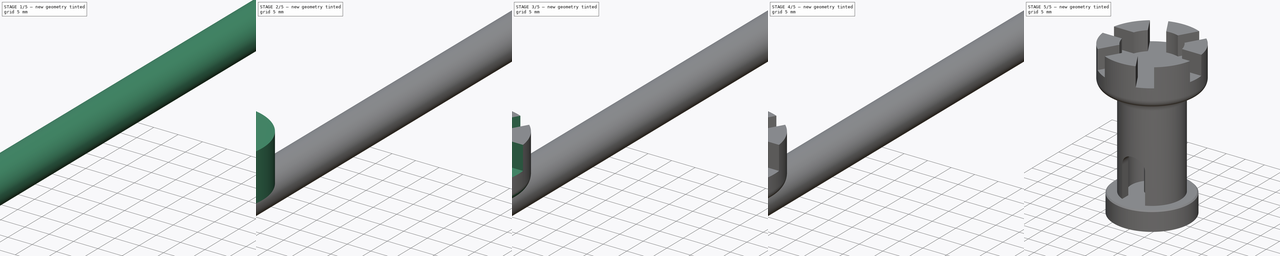
[diagram: build sequence overview — one tinted view per stage of 5, left to right]
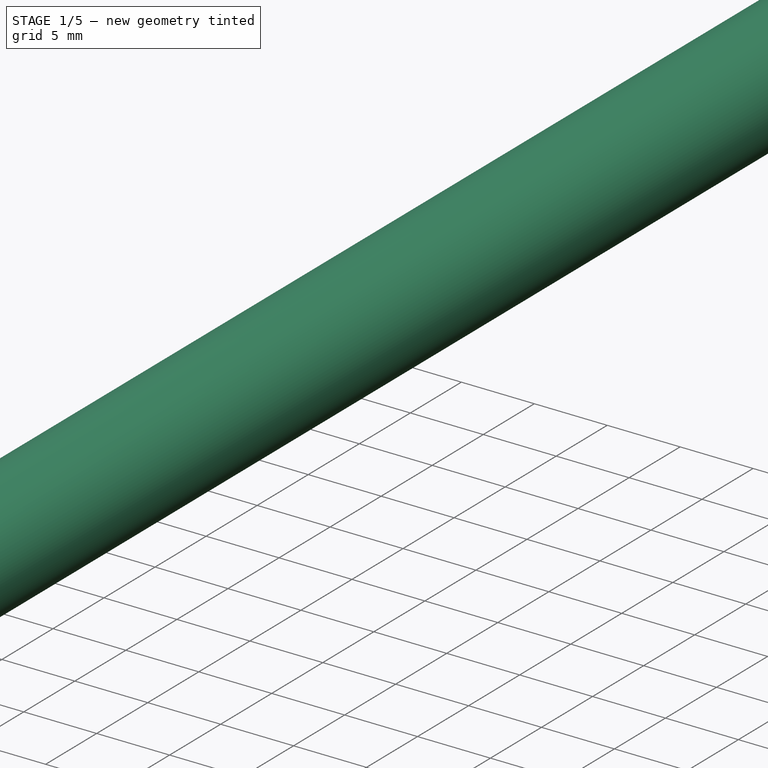
[diagram: stage 1 of 5 — iso view after this stage's code; geometry added in this stage tinted green]
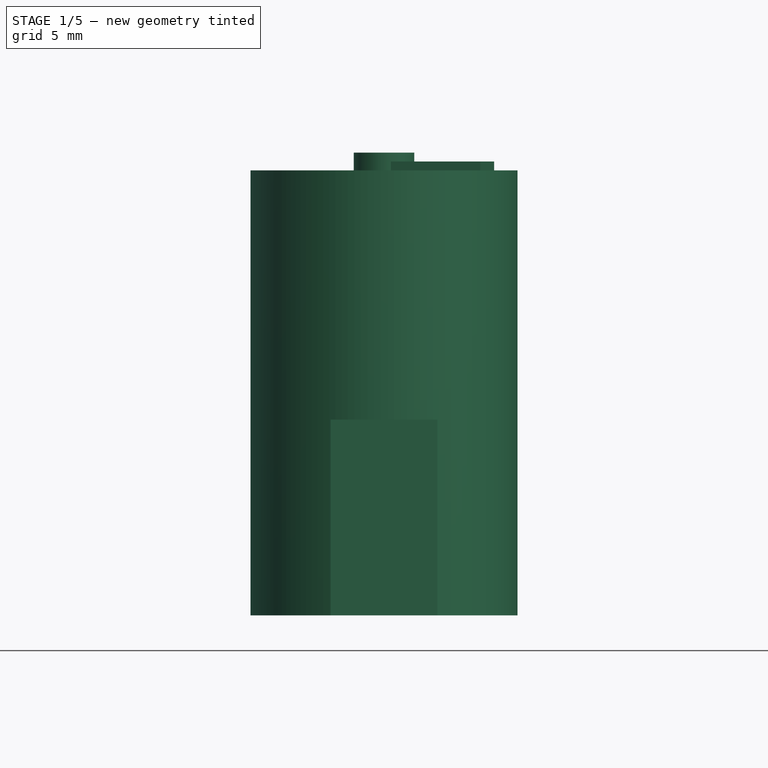
[diagram: stage 1 of 5 — front view after this stage's code; geometry added in this stage tinted green]
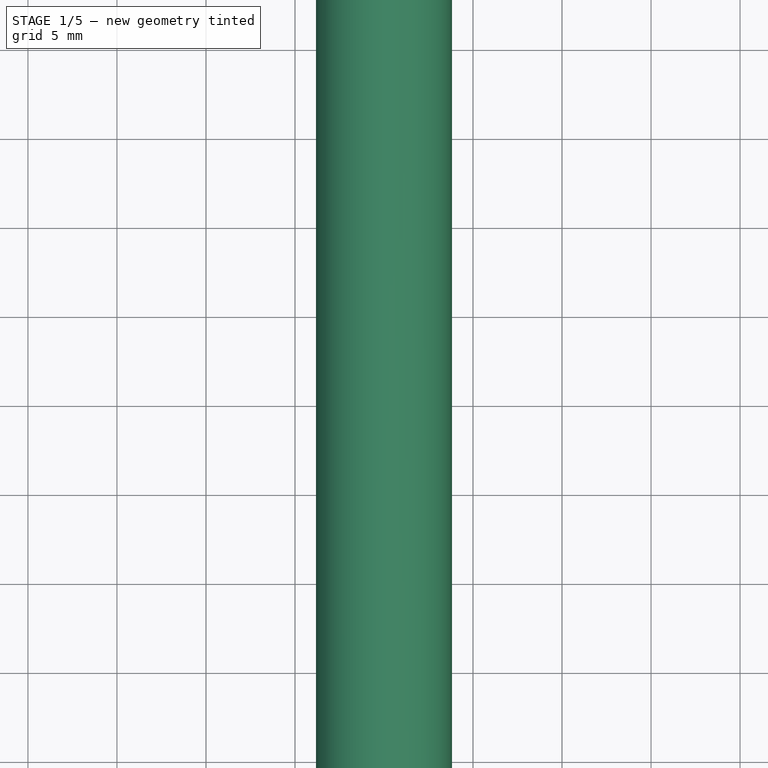
[diagram: stage 1 of 5 — top view after this stage's code; geometry added in this stage tinted green]
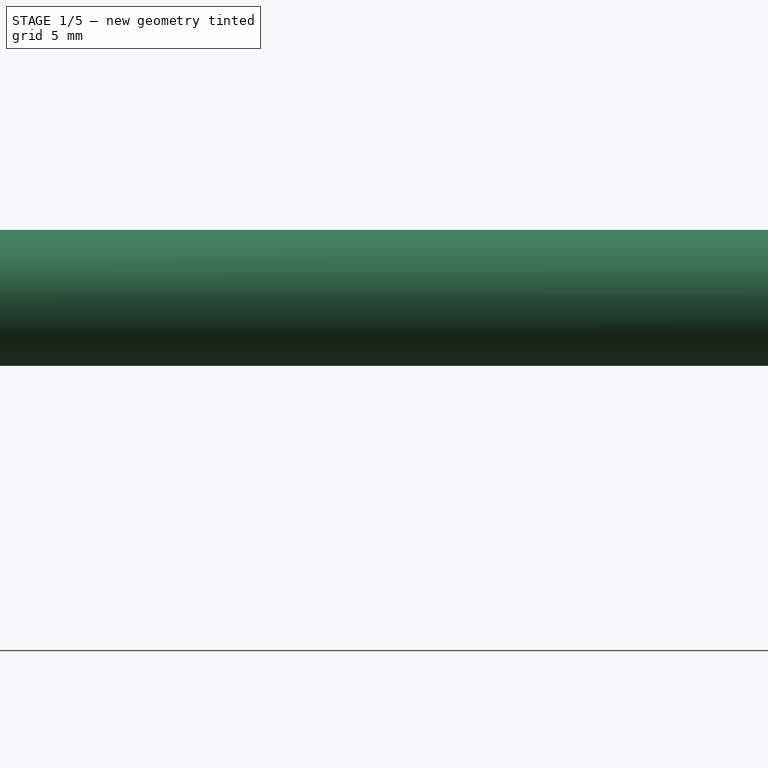
[diagram: stage 1 of 5 — right view after this stage's code; geometry added in this stage tinted green]
FCSTD DOCUMENT  (FreeCAD 0.16R6706 (Git))
Label: Torre663
License: All rights reserved
LicenseURL: http://en.wikipedia.org/wiki/All_rights_reserved
objects: PartDesign::Fillet×15, Part::Cylinder×6, Part::Cut×5, Part::MultiFuse×4, Part::Box×3, Part::Fillet×3, Part::FeaturePython×2, Part::Chamfer×1, PartDesign::Chamfer×1, Sketcher::SketchObject×1, PartDesign::Pad×1
note: 43 computed .brp shape members not serialized (recipe doc carries the construction recipe); baked Part::Feature solids carry a one-line shape summary decoded from their .brp

FEATURE [Part::Cylinder] Cylinder  label="cuerpo"
  Angle = 360
  Height = 25
  Radius = 7.5
FEATURE [Part::Cylinder] Cylinder002  label="cuerpo001"
  Angle = 360
  Height = 25
  Radius = 5.5
FEATURE [Part::Cut] Cut
  Base = -> Cylinder
  Tool = -> Cylinder002
FEATURE [Part::Box] Box  label="Cubo"
  Height = 2.5
  Length = 6
  Placement = pos=(0,-1.5,0) rot=(0,0,1;0rad)
  Width = 3
FEATURE [Part::FeaturePython] Array  # Draft array (typed FeaturePython)
  Angle = 360
  ArrayType = 1
  Axis = (0,0,1)
  Base = -> Box
  Center = (0,0,0)
  Fuse = true
  IntervalAxis = (0,0,1)
  IntervalX = (1,0,0)
  IntervalY = (0,1,0)
  IntervalZ = (0,0,0)
  NumberPolar = 24
  NumberX = 2
  NumberY = 2
  NumberZ = 1
  expr: Angle = 360
FEATURE [Part::Cylinder] Cylinder004  label="Cilindro002"
  Angle = 360
  Height = 26
  Radius = 1.7
FEATURE [Part::Box] Box003  label="Cubo003"
  Height = 11
  Length = 4
  Placement = pos=(3,-8,0) rot=(0,0,1;1.5708rad)
  Width = 6
FEATURE [Sketcher::SketchObject] Sketch
  Placement = pos=(0,120,0) rot=(-1,0,0;4.71239rad)
  sketch-geometry (1):
    g0: Circle CenterX=0 CenterY=17.8373 CenterZ=0 NormalX=0 NormalY=0 NormalZ=1 Radius=3.81995
  constraints (1):
    c: PointOnObject(g0,g-2)
FEATURE [PartDesign::Pad] Pad
  Length = 116
  Length2 = 100
  Placement = pos=(0,120,0) rot=(-1,0,0;4.71239rad)
  Sketch = -> Sketch
  Type = 0
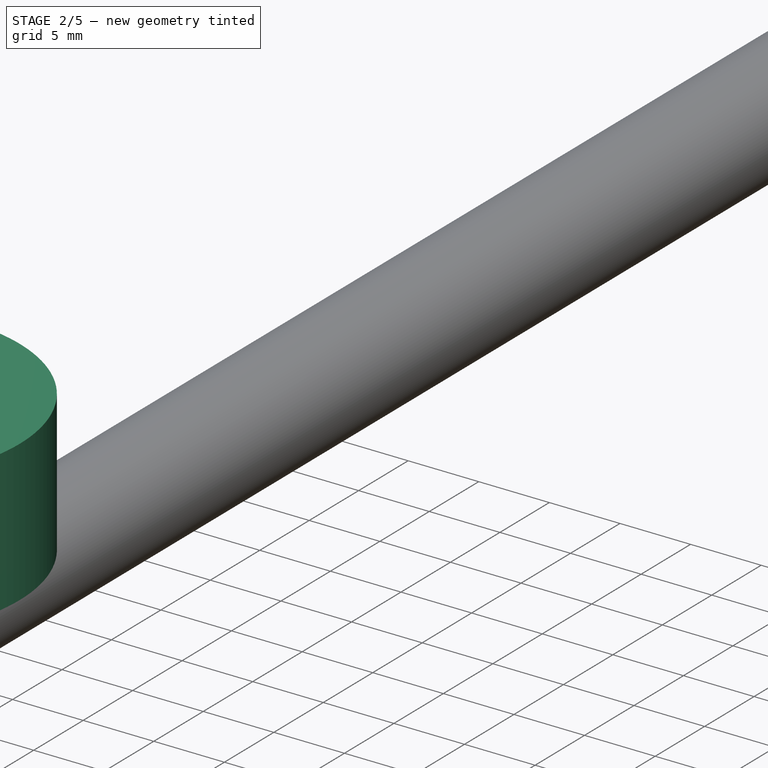
[diagram: stage 2 of 5 — iso view after this stage's code; geometry added in this stage tinted green]
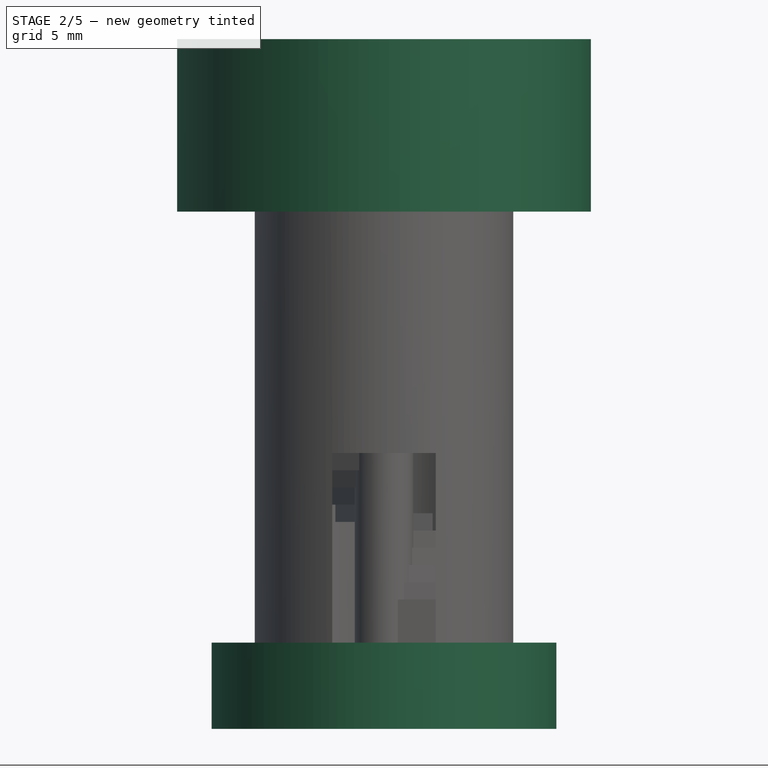
[diagram: stage 2 of 5 — front view after this stage's code; geometry added in this stage tinted green]
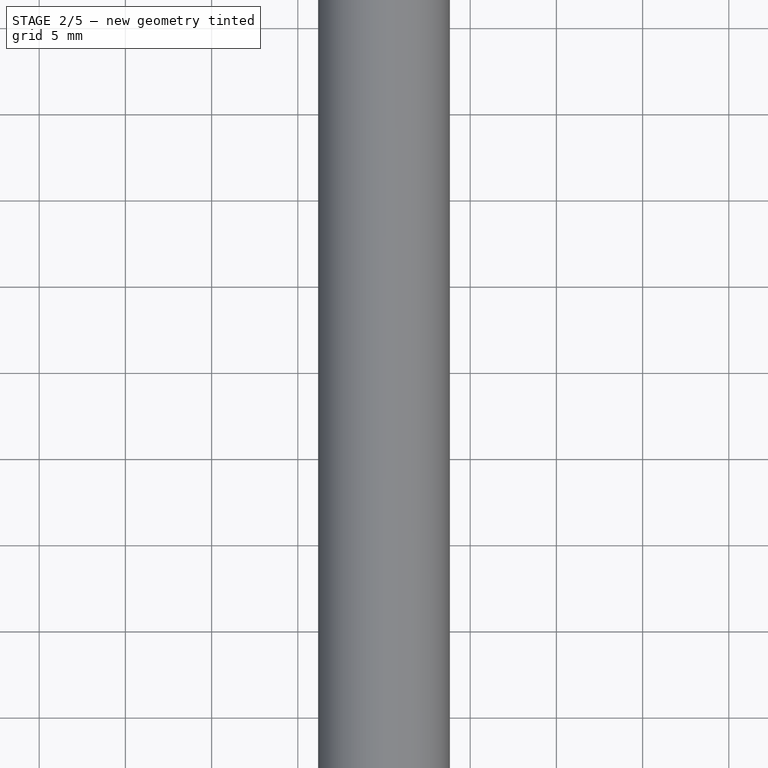
[diagram: stage 2 of 5 — top view after this stage's code; geometry added in this stage tinted green]
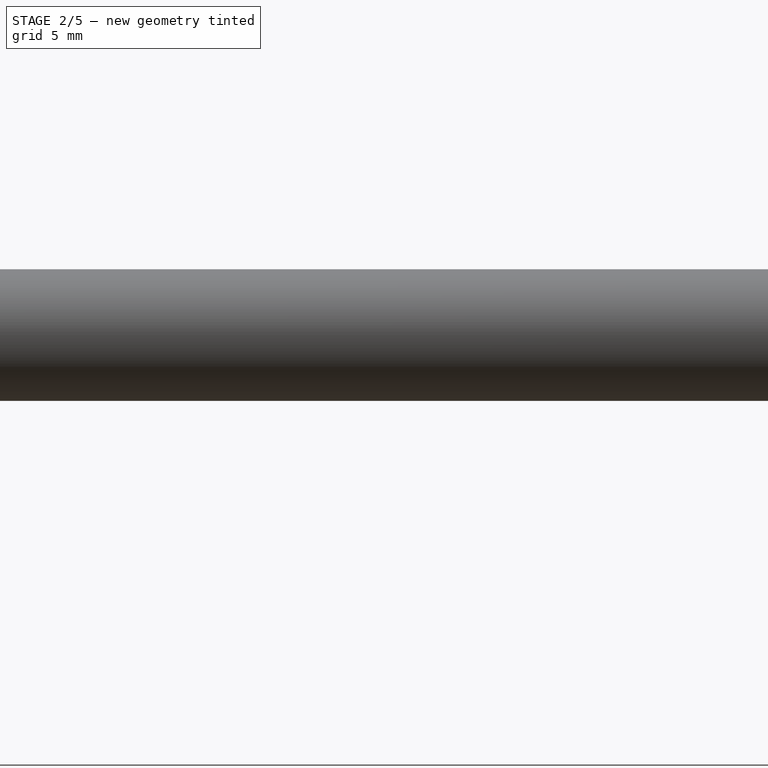
[diagram: stage 2 of 5 — right view after this stage's code; geometry added in this stage tinted green]
FEATURE [Part::Cylinder] Cylinder001  label="Cilindro"
  Angle = 360
  Height = 5
  Placement = pos=(0,0,-5) rot=(0,0,1;0rad)
  Radius = 10
FEATURE [Part::Cylinder] Cylinder003  label="Cilindro001"
  Angle = 360
  Height = 10
  Placement = pos=(0,0,25) rot=(0,0,1;0rad)
  Radius = 12
FEATURE [Part::MultiFuse] Fusion
  Shapes = -> [Array,Cut]
FEATURE [Part::MultiFuse] Fusion001
  Shapes = -> [Cylinder001,Fusion]
FEATURE [Part::MultiFuse] Fusion002
  Shapes = -> [Cylinder004,Fusion001]
FEATURE [Part::Cylinder] Cylinder005  label="Cilindro003"
  Angle = 360
  Height = 5
  Placement = pos=(0,0,30) rot=(0,0,1;0rad)
  Radius = 7
  expr: Radius = 12 - 5
FEATURE [Part::Cut] Cut001
  Base = -> Cylinder003
  Tool = -> Cylinder005
FEATURE [Part::Cut] Cut003
  Base = -> Fusion002
  Tool = -> Box003
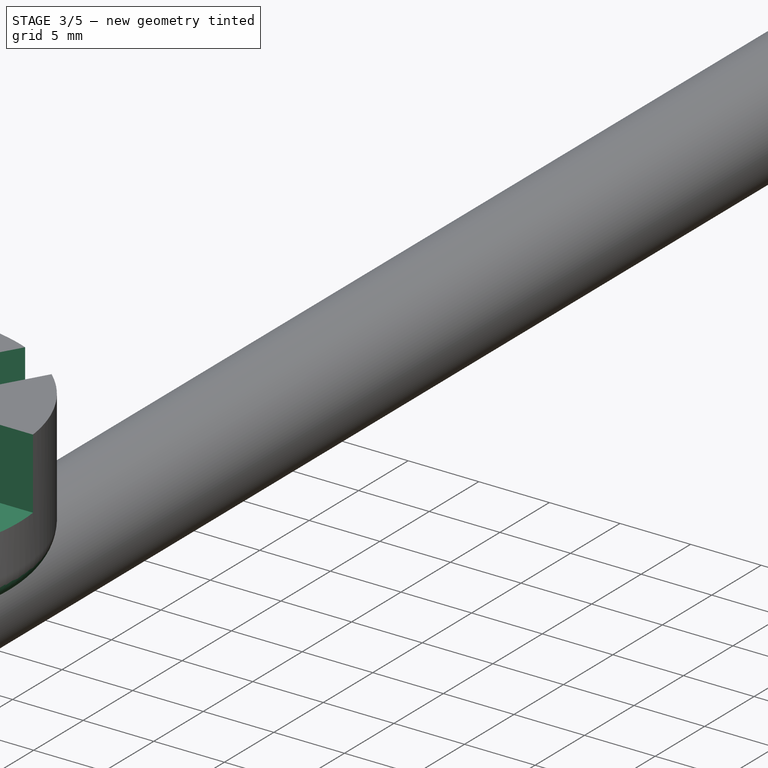
[diagram: stage 3 of 5 — iso view after this stage's code; geometry added in this stage tinted green]
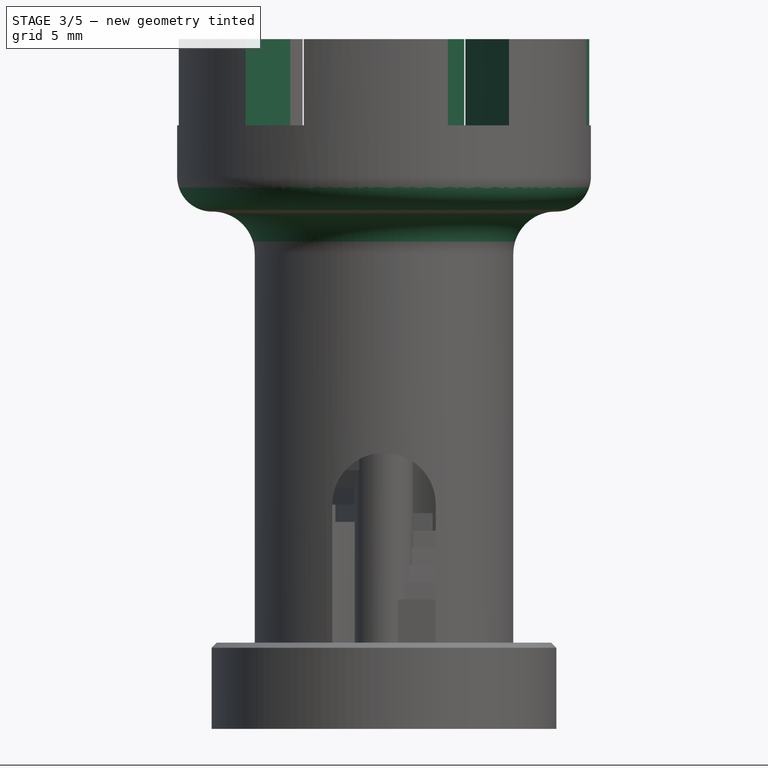
[diagram: stage 3 of 5 — front view after this stage's code; geometry added in this stage tinted green]
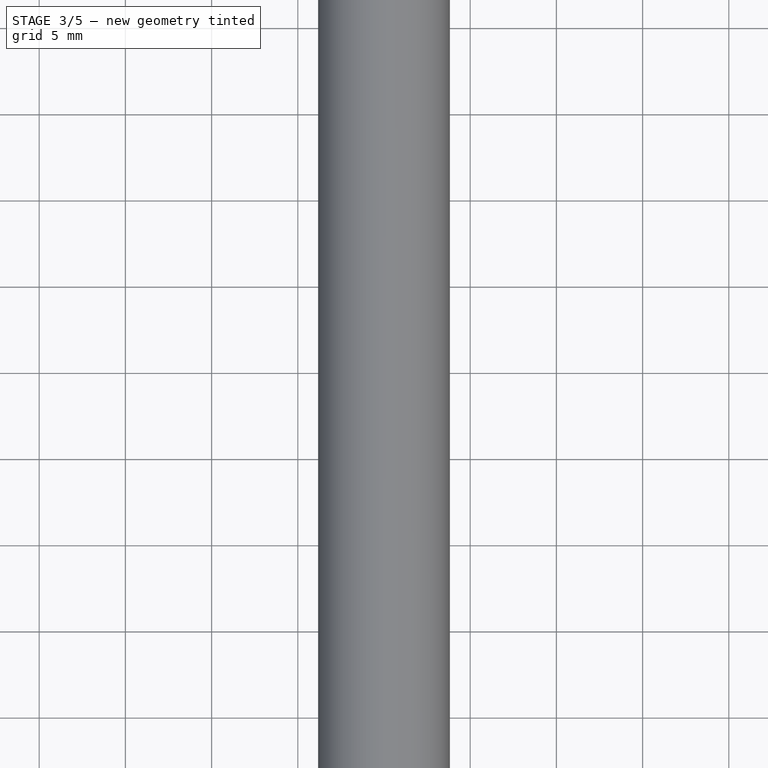
[diagram: stage 3 of 5 — top view after this stage's code; geometry added in this stage tinted green]
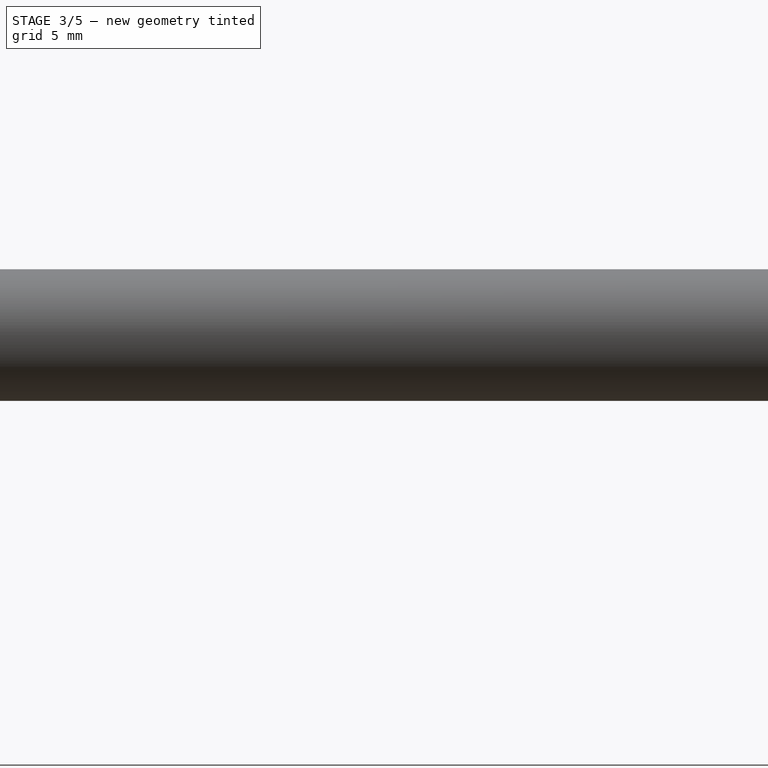
[diagram: stage 3 of 5 — right view after this stage's code; geometry added in this stage tinted green]
FEATURE [Part::Box] Box002  label="Cubo002"
  Height = 5
  Length = 10
  Placement = pos=(4,-2.5,0) rot=(0,0,1;0rad)
  Width = 4
FEATURE [Part::FeaturePython] Array001  # Draft array (typed FeaturePython)
  Angle = 360
  ArrayType = 1
  Axis = (0,0,1)
  Base = -> Box002
  Center = (0,0,0)
  Fuse = false
  IntervalAxis = (0,0,0)
  IntervalX = (1,0,0)
  IntervalY = (0,1,0)
  IntervalZ = (0,0,0)
  NumberPolar = 6
  NumberX = 2
  NumberY = 2
  NumberZ = 1
  Placement = pos=(0,0,30) rot=(0,0,1;0rad)
FEATURE [Part::Cut] Cut002
  Base = -> Cut001
  Tool = -> Array001
FEATURE [Part::MultiFuse] Fusion003
  Shapes = -> [Cut003,Cut002]
FEATURE [Part::Fillet] Fillet
  Base = -> Fusion003
  Edges = 1 edges r=3: [Edge293]
FEATURE [Part::Fillet] Fillet001
  Base = -> Fillet
  Edges = 1 edges r=2.99: [Edge116]
FEATURE [Part::Chamfer] Chamfer
  Base = -> Fillet001
  Edges = 1 edges r=0.3: [Edge116]
FEATURE [Part::Fillet] Fillet002
  Base = -> Chamfer
  Edges = 2 edges: [Edge221 r=2.45,Edge319 r=2.03]
FEATURE [PartDesign::Fillet] Fillet003
  Base = -> Fillet002 [Edge270,Edge268,Edge266,Edge264,Edge262]
  Radius = 0.9
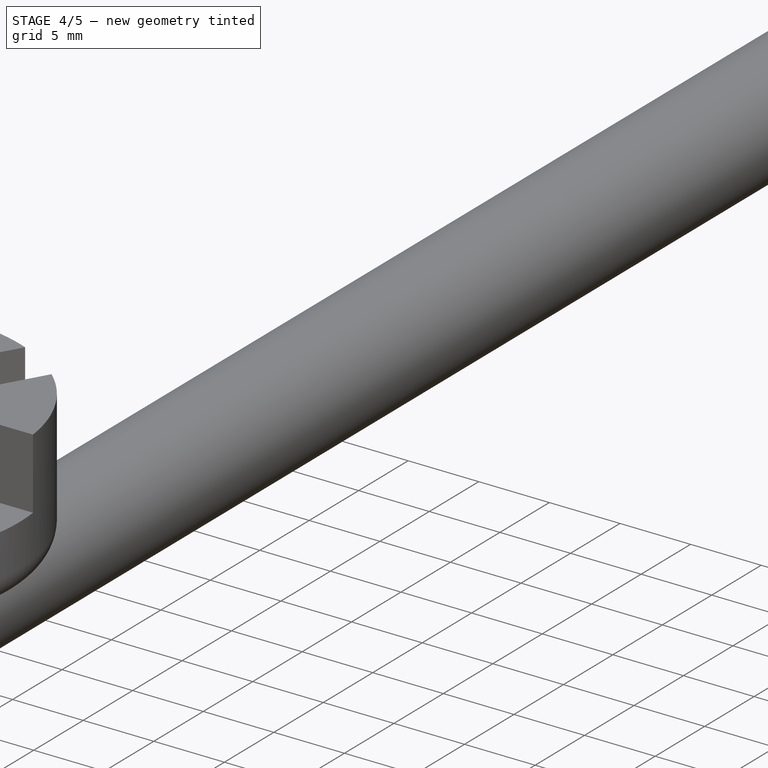
[diagram: stage 4 of 5 — iso view after this stage's code; geometry added in this stage tinted green]
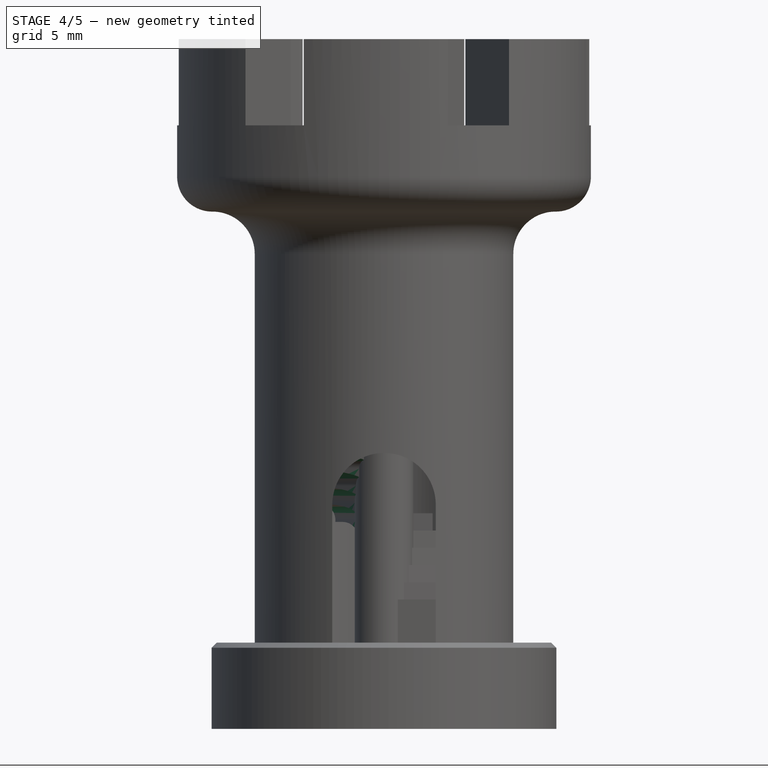
[diagram: stage 4 of 5 — front view after this stage's code; geometry added in this stage tinted green]
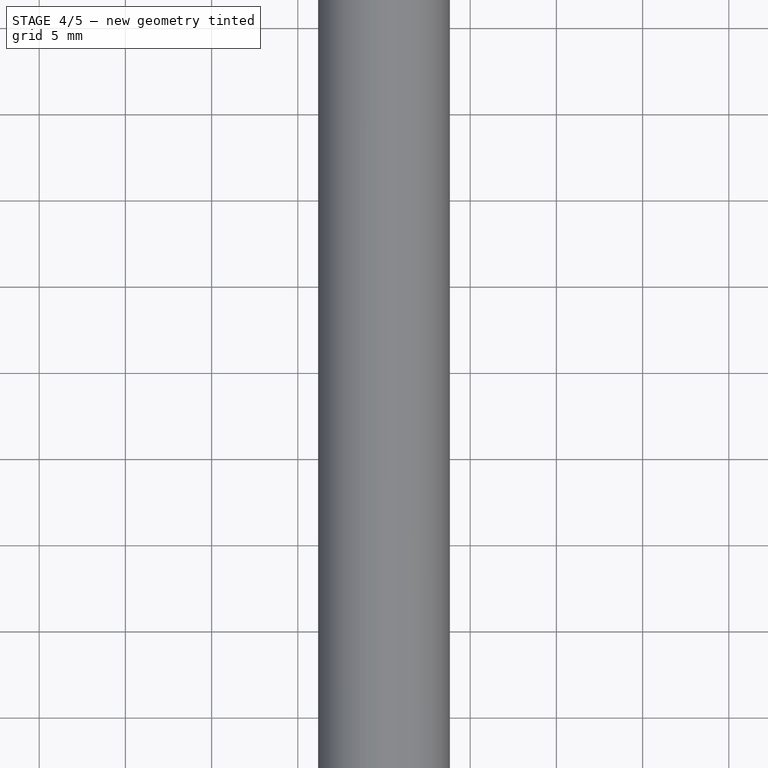
[diagram: stage 4 of 5 — top view after this stage's code; geometry added in this stage tinted green]
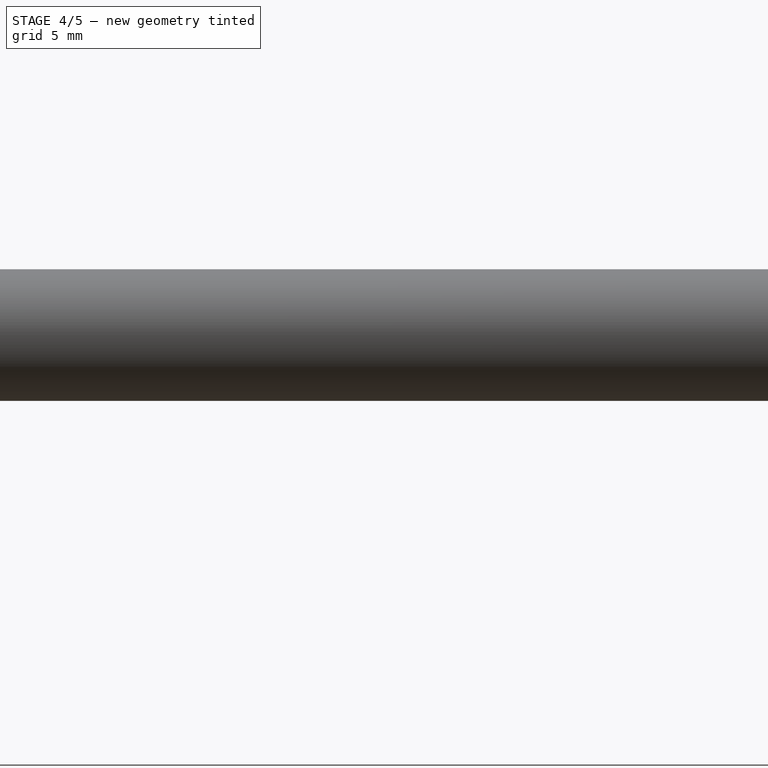
[diagram: stage 4 of 5 — right view after this stage's code; geometry added in this stage tinted green]
FEATURE [PartDesign::Fillet] Fillet004
  Base = -> Fillet003 [Edge100,Edge112,Edge122,Edge132,Edge142,Edge151]
  Radius = 0.9
FEATURE [PartDesign::Fillet] Fillet005
  Base = -> Fillet004 [Edge167,Edge183,Edge191,Edge200,Edge208,Edge216]
  Radius = 0.9
FEATURE [PartDesign::Fillet] Fillet006
  Base = -> Fillet005 [Edge169]
  Radius = 0.9
FEATURE [PartDesign::Fillet] Fillet007
  Base = -> Fillet006 [Edge124,Edge134,Edge144]
  Radius = 0.9
FEATURE [PartDesign::Fillet] Fillet008
  Base = -> Fillet007 [Edge106]
  Radius = 0.1
FEATURE [PartDesign::Fillet] Fillet009
  Base = -> Fillet008 [Edge102]
  Radius = 1.8
FEATURE [PartDesign::Fillet] Fillet010
  Base = -> Fillet009 [Edge106,Edge104]
  Radius = 2
FEATURE [PartDesign::Fillet] Fillet011
  Base = -> Fillet010 [Edge114,Edge112,Edge126,Edge127,Edge139,Edge138]
  Radius = 2
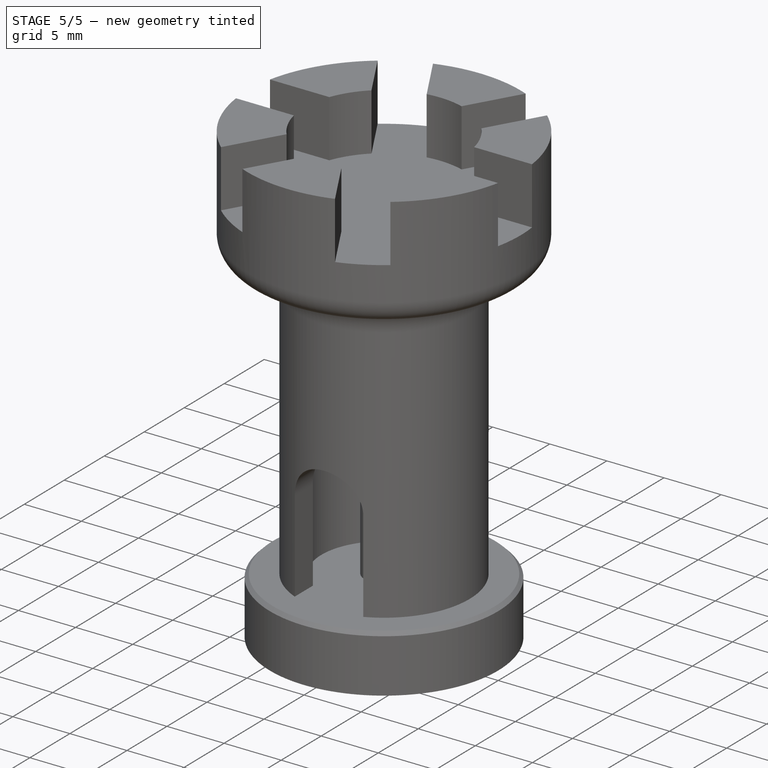
[diagram: stage 5 of 5 — iso view after this stage's code; geometry added in this stage tinted green]
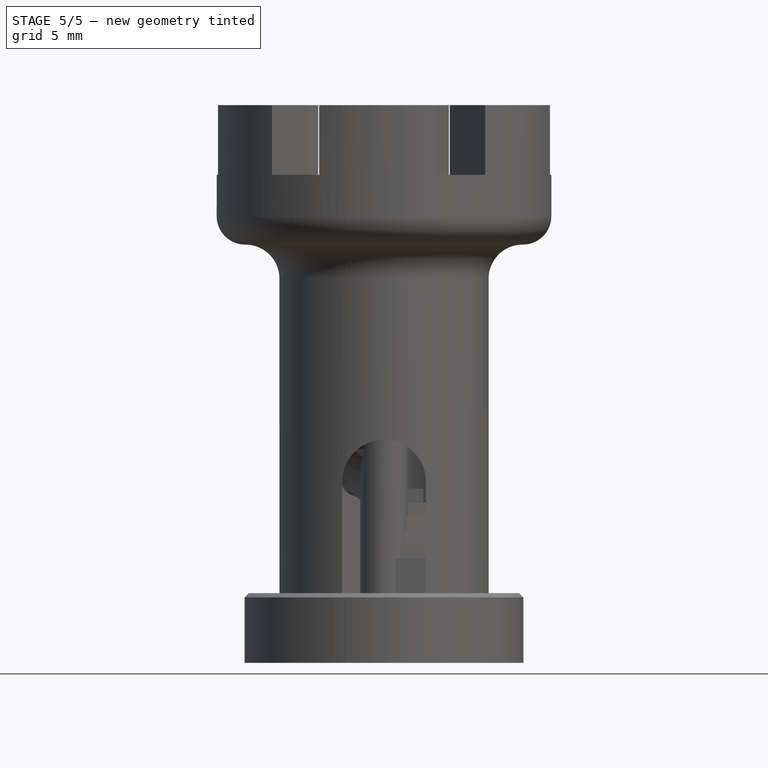
[diagram: stage 5 of 5 — front view after this stage's code; geometry added in this stage tinted green]
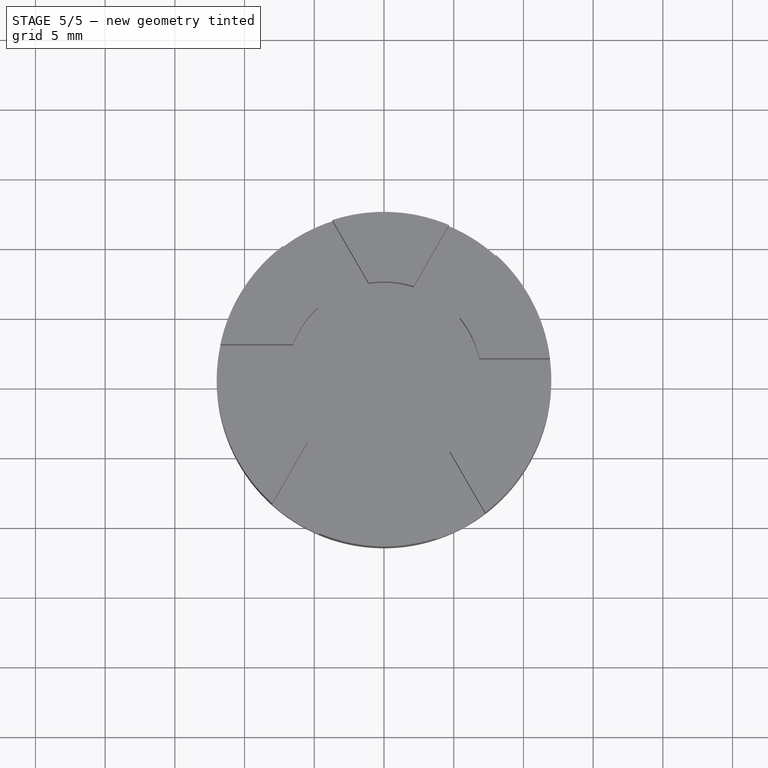
[diagram: stage 5 of 5 — top view after this stage's code; geometry added in this stage tinted green]
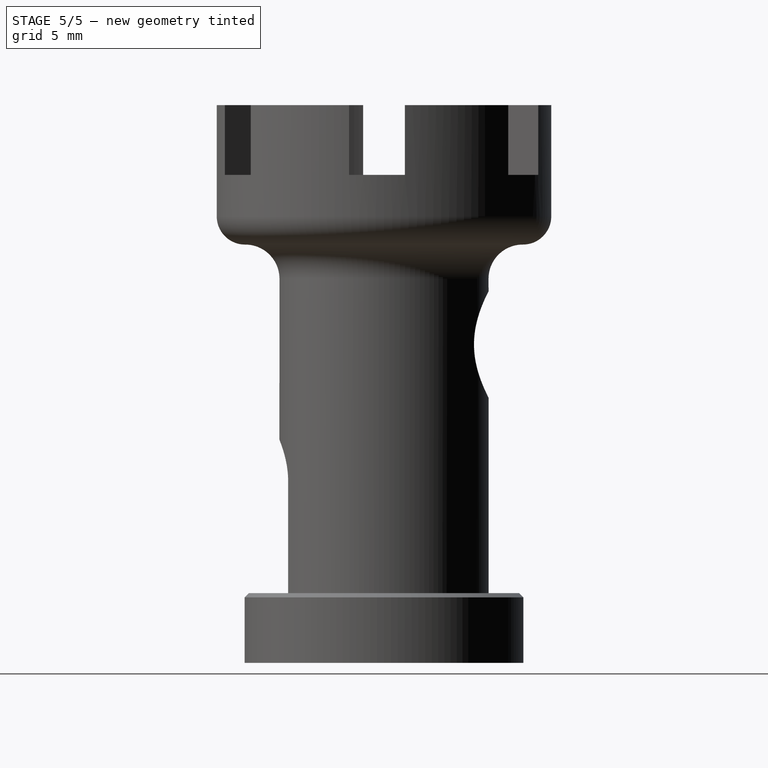
[diagram: stage 5 of 5 — right view after this stage's code; geometry added in this stage tinted green]
FEATURE [PartDesign::Fillet] Fillet012
  Base = -> Fillet011 [Edge133,Edge132,Edge144,Edge145,Edge156,Edge157,Edge167,Edge165,Edge176,Edge177,Edge186,Edge187,Edge196,Edge197,Edge206,Edge207,Edge216,Edge217,Edge227,Edge225,Edge236,Edge237,Edge247,Edge246,Edge257,Edge256,Edge266,Edge267]
  Radius = 1.8
FEATURE [PartDesign::Chamfer] Chamfer001
  Base = -> Fillet012 [Edge228]
  Size = 0.9
FEATURE [PartDesign::Fillet] Fillet013
  Base = -> Chamfer001 [Edge103]
  Radius = 1
FEATURE [PartDesign::Fillet] Fillet014
  Base = -> Fillet013 [Edge2]
  Radius = 1
FEATURE [PartDesign::Fillet] Fillet015
  Base = -> Fillet014 [Edge220]
  Radius = 0.2
FEATURE [PartDesign::Fillet] Fillet016
  Base = -> Fillet015 [Edge280,Edge288,Edge291,Edge298]
  Radius = 2
FEATURE [PartDesign::Fillet] Fillet017
  Base = -> Fillet016 [Edge117,Edge122]
  Radius = 2
FEATURE [Part::Cut] Cut004
  Base = -> Fillet017
  Tool = -> Pad
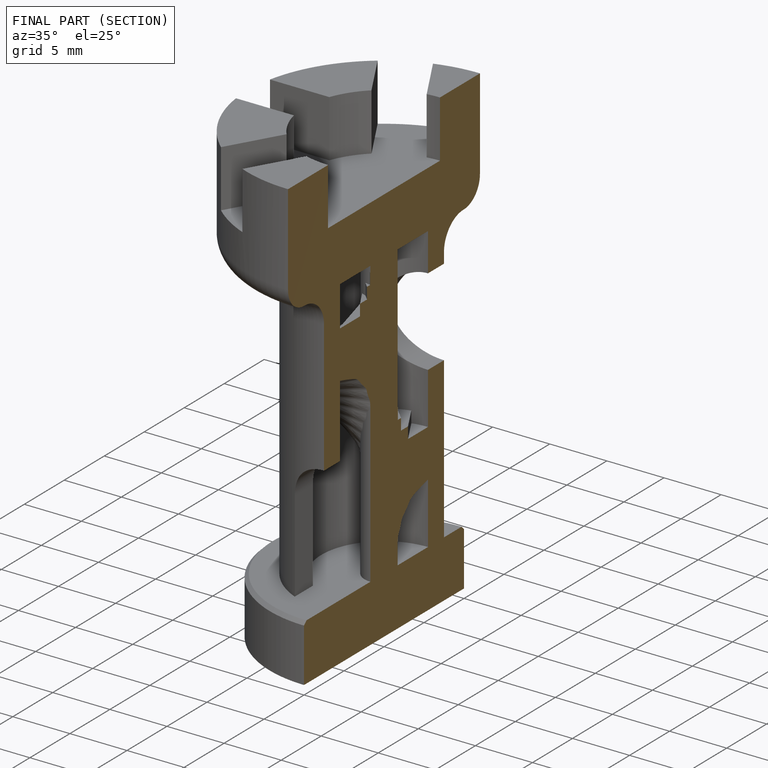
[diagram: finished part — half-section view (interior)]
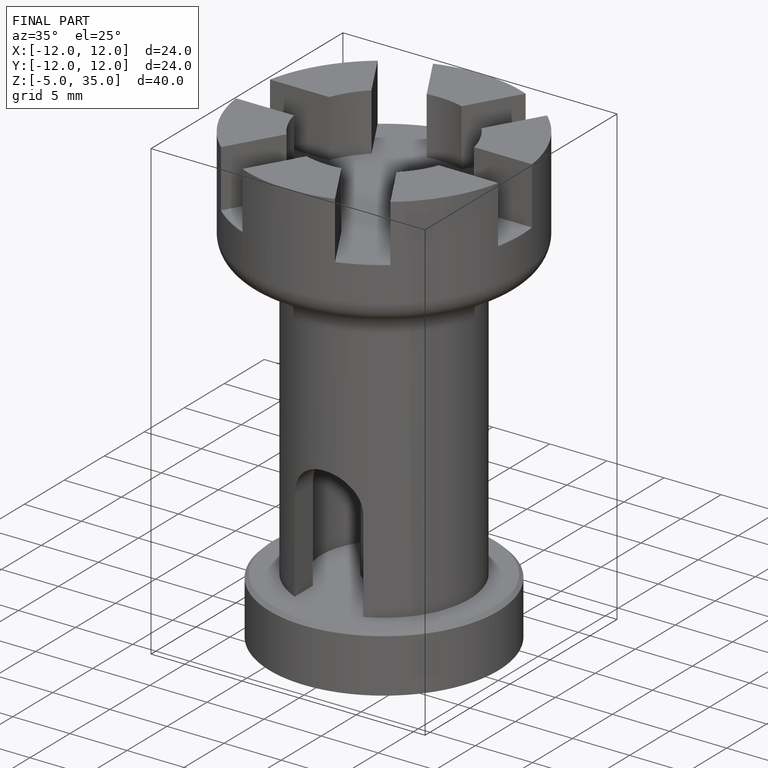
[diagram: finished part — iso view with bounding-box wireframe]
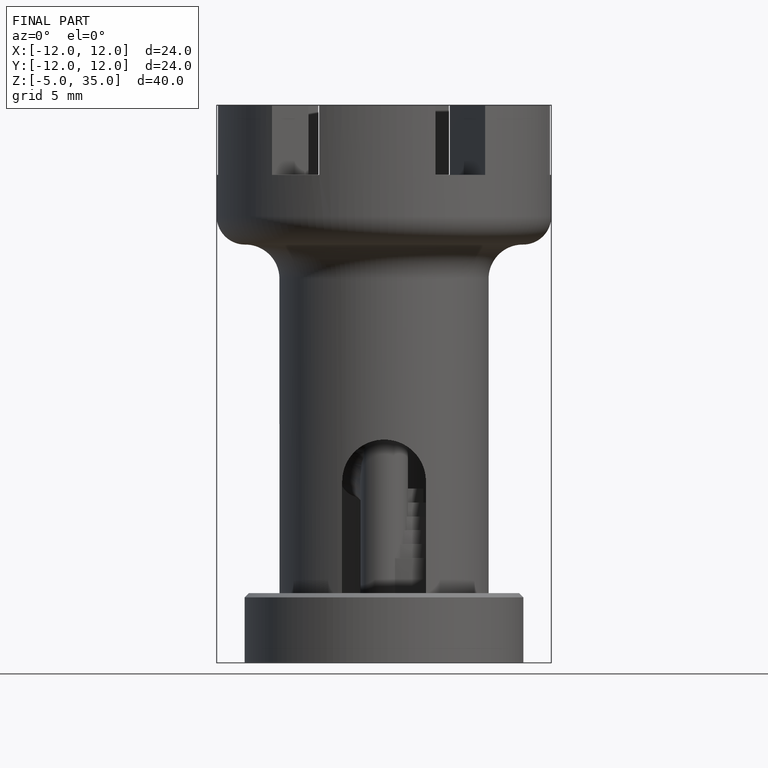
[diagram: finished part — front view with bounding-box wireframe]
